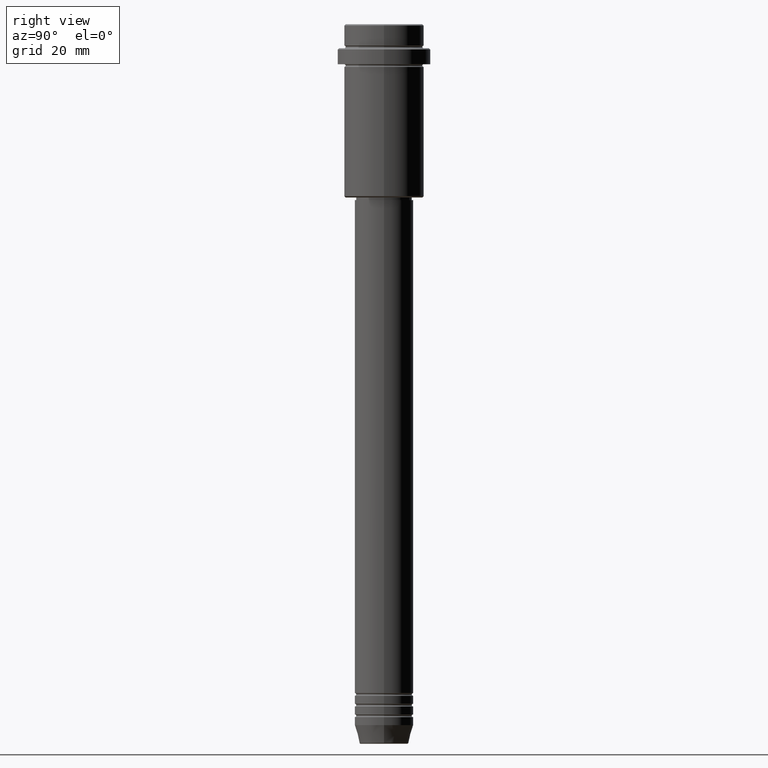
[diagram: clean part render]
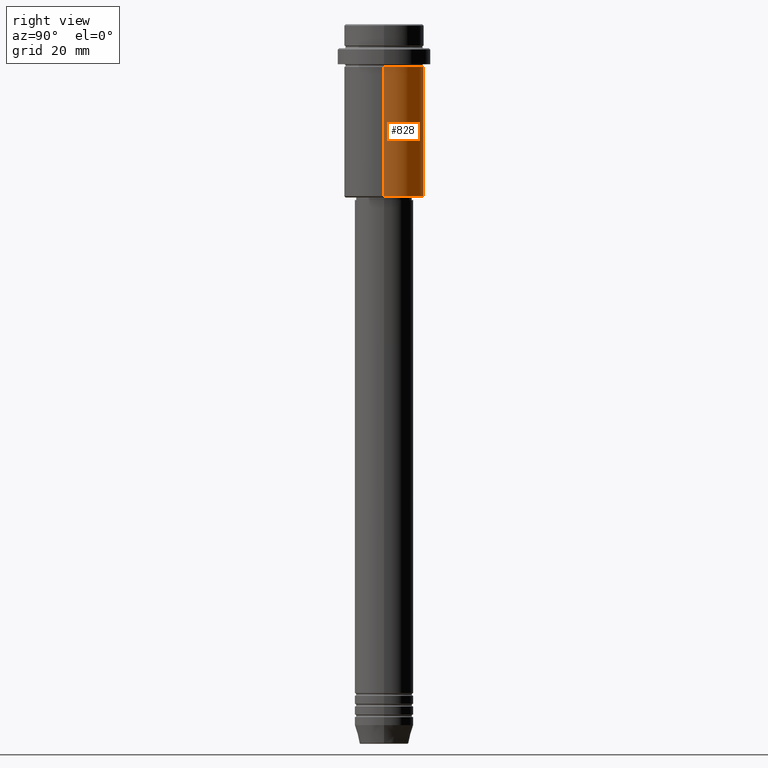
[diagram: same view with one face highlighted and labeled with its STEP entity id]
A machine part, right view. The second image highlights one B-rep face of the part: STEP entity #828.
In plain terms, the highlighted cylindrical surface (partial cylindrical patch) has radius 15 mm, axis along (-0, -0, 1).
Its self-contained STEP definition (entity closure, byte-faithful):
#21 = DIRECTION ( 'NONE',  ( -0.000000000000000000, -0.000000000000000000, 1.000000000000000000 ) ) ;
#36 = ORIENTED_EDGE ( 'NONE', *, *, #1263, .T. ) ;
#45 = VECTOR ( 'NONE', #565, 1000.000000000000000 ) ;
#48 = AXIS2_PLACEMENT_3D ( 'NONE', #1009, #21, #789 ) ;
#185 = VERTEX_POINT ( 'NONE', #322 ) ;
#237 = LINE ( 'NONE', #1335, #45 ) ;
#259 = CYLINDRICAL_SURFACE ( 'NONE', #550, 15.00000000000000000 ) ;
#265 = EDGE_CURVE ( 'NONE', #1344, #1386, #447, .T. ) ;
#313 = EDGE_CURVE ( 'NONE', #185, #1386, #1393, .T. ) ;
#322 = CARTESIAN_POINT ( 'NONE',  ( 15.00000000000000178, 0.000000000000000000, -16.00000000000000000 ) ) ;
#346 = CARTESIAN_POINT ( 'NONE',  ( -15.00000000000000000, 1.836970198721029589E-15, 0.000000000000000000 ) ) ;
#348 = CIRCLE ( 'NONE', #48, 15.00000000000000000 ) ;
#443 = EDGE_LOOP ( 'NONE', ( #36, #1364, #1399, #1089 ) ) ;
#447 = LINE ( 'NONE', #346, #917 ) ;
#486 = DIRECTION ( 'NONE',  ( 1.000000000000000000, 0.000000000000000000, 0.000000000000000000 ) ) ;
#550 = AXIS2_PLACEMENT_3D ( 'NONE', #693, #1361, #1134 ) ;
#565 = DIRECTION ( 'NONE',  ( -0.000000000000000000, -0.000000000000000000, 1.000000000000000000 ) ) ;
#577 = VERTEX_POINT ( 'NONE', #607 ) ;
#597 = CARTESIAN_POINT ( 'NONE',  ( -15.00000000000000355, 1.836970198721029983E-15, -16.00000000000000000 ) ) ;
#607 = CARTESIAN_POINT ( 'NONE',  ( 15.00000000000000000, 0.000000000000000000, -64.49999999999998579 ) ) ;
#693 = CARTESIAN_POINT ( 'NONE',  ( 0.000000000000000000, 0.000000000000000000, 0.000000000000000000 ) ) ;
#694 = CARTESIAN_POINT ( 'NONE',  ( 0.000000000000000000, 0.000000000000000000, -16.00000000000000000 ) ) ;
#710 = EDGE_CURVE ( 'NONE', #577, #185, #237, .T. ) ;
#789 = DIRECTION ( 'NONE',  ( -1.000000000000000000, 0.000000000000000000, 0.000000000000000000 ) ) ;
#828 = ADVANCED_FACE ( 'NONE', ( #1129 ), #259, .T. ) ;
#842 = CARTESIAN_POINT ( 'NONE',  ( -15.00000000000000000, 1.836970198721029589E-15, -64.49999999999998579 ) ) ;
#893 = DIRECTION ( 'NONE',  ( -0.000000000000000000, -0.000000000000000000, 1.000000000000000000 ) ) ;
#917 = VECTOR ( 'NONE', #893, 1000.000000000000000 ) ;
#1009 = CARTESIAN_POINT ( 'NONE',  ( 0.000000000000000000, 0.000000000000000000, -64.49999999999998579 ) ) ;
#1089 = ORIENTED_EDGE ( 'NONE', *, *, #710, .F. ) ;
#1129 = FACE_OUTER_BOUND ( 'NONE', #443, .T. ) ;
#1134 = DIRECTION ( 'NONE',  ( 1.000000000000000000, 0.000000000000000000, 0.000000000000000000 ) ) ;
#1246 = DIRECTION ( 'NONE',  ( -0.000000000000000000, -0.000000000000000000, 1.000000000000000000 ) ) ;
#1263 = EDGE_CURVE ( 'NONE', #577, #1344, #348, .T. ) ;
#1335 = CARTESIAN_POINT ( 'NONE',  ( 15.00000000000000000, 0.000000000000000000, 0.000000000000000000 ) ) ;
#1344 = VERTEX_POINT ( 'NONE', #842 ) ;
#1348 = AXIS2_PLACEMENT_3D ( 'NONE', #694, #1246, #486 ) ;
#1361 = DIRECTION ( 'NONE',  ( -0.000000000000000000, -0.000000000000000000, 1.000000000000000000 ) ) ;
#1364 = ORIENTED_EDGE ( 'NONE', *, *, #265, .T. ) ;
#1386 = VERTEX_POINT ( 'NONE', #597 ) ;
#1393 = CIRCLE ( 'NONE', #1348, 15.00000000000000178 ) ;
#1399 = ORIENTED_EDGE ( 'NONE', *, *, #313, .F. ) ;